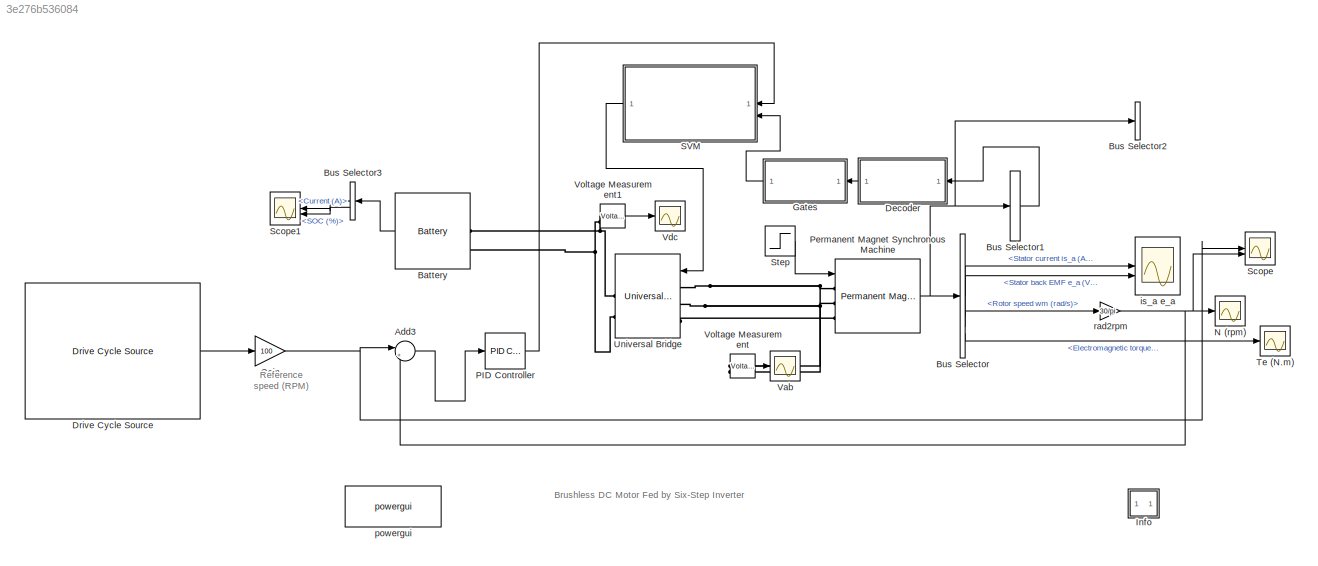
MODEL slx_3e276b536084
KIND model
CONFIG AbsTol = 1e-6
CONFIG EnableMultiTasking = on
CONFIG FixedStep = Ts
CONFIG MaxStep = 1e-6
CONFIG MinStep = auto
CONFIG PreLoadFcn = assignin('base','Ts',[5e-6])
CONFIG RelTol = 1e-6
CONFIG SampleTimeConstraint = Unconstrained
CONFIG SolverName = ode4
CONFIG StartTime = 0
CONFIG StopTime = 100
BLOCK [Sum] Add3
  Inputs = |+-
BLOCK [Reference] Battery  REF=spsBatteryLib/Battery
  LibrarySourceBlock = sps_lib/Sources/Battery
  SourceBlock = spsBatteryLib/Battery
  SourceType = Battery
BLOCK [BusSelector] Bus Selector
  OutputSignals = Stator current is_a (A),Stator back EMF e_a (V),Rotor speed wm (rad/s),Electromagnetic torque Te (N*m)
BLOCK [BusSelector] Bus Selector1
  OutputAsBus = on
  OutputSignals = Hall effect signal h_a,Hall effect signal h_b,Hall effect signal h_c
BLOCK [BusSelector] Bus Selector2
  OutputAsBus = on
  OutputSignals = Hall effect signal h_a,Hall effect signal h_b,Hall effect signal h_c
BLOCK [BusSelector] Bus Selector3
  NameLocation = top
  OutputSignals = Current (A),SOC (%)
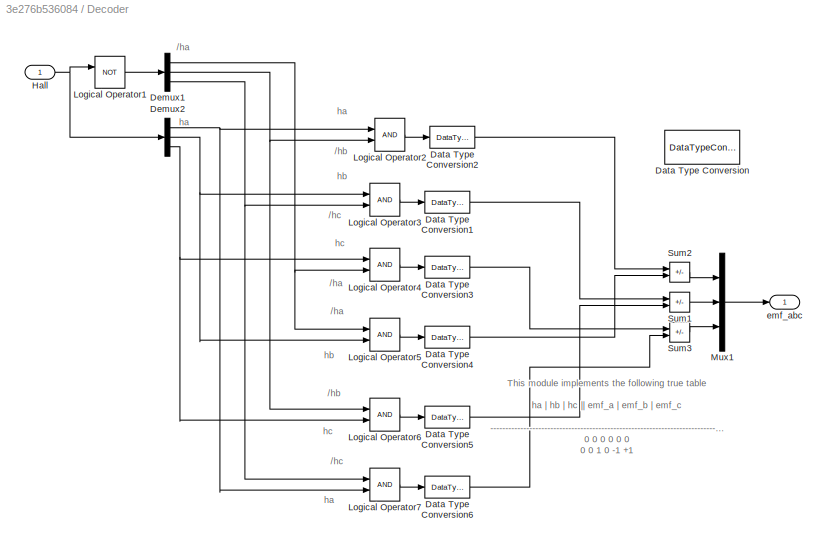
BLOCK [SubSystem] Decoder
  NameLocation = top
BLOCK [DataTypeConversion] Decoder/Data Type Conversion
  RndMeth = Floor
  SaturateOnIntegerOverflow = off
BLOCK [DataTypeConversion] Decoder/Data Type Conversion1
  RndMeth = Floor
  SaturateOnIntegerOverflow = off
BLOCK [DataTypeConversion] Decoder/Data Type Conversion2
  RndMeth = Floor
  SaturateOnIntegerOverflow = off
BLOCK [DataTypeConversion] Decoder/Data Type Conversion3
  RndMeth = Floor
  SaturateOnIntegerOverflow = off
BLOCK [DataTypeConversion] Decoder/Data Type Conversion4
  RndMeth = Floor
  SaturateOnIntegerOverflow = off
BLOCK [DataTypeConversion] Decoder/Data Type Conversion5
  RndMeth = Floor
  SaturateOnIntegerOverflow = off
BLOCK [DataTypeConversion] Decoder/Data Type Conversion6
  RndMeth = Floor
  SaturateOnIntegerOverflow = off
BLOCK [Demux] Decoder/Demux1
  Outputs = 3
BLOCK [Demux] Decoder/Demux2
  Outputs = 3
BLOCK [Inport] Decoder/Hall 
BLOCK [Logic] Decoder/Logical Operator1
  AllPortsSameDT = off
  Operator = NOT
  OutDataTypeStr = boolean
BLOCK [Logic] Decoder/Logical Operator2
  AllPortsSameDT = off
  OutDataTypeStr = boolean
BLOCK [Logic] Decoder/Logical Operator3
  AllPortsSameDT = off
  OutDataTypeStr = boolean
BLOCK [Logic] Decoder/Logical Operator4
  AllPortsSameDT = off
  OutDataTypeStr = boolean
BLOCK [Logic] Decoder/Logical Operator5
  AllPortsSameDT = off
  OutDataTypeStr = boolean
BLOCK [Logic] Decoder/Logical Operator6
  AllPortsSameDT = off
  OutDataTypeStr = boolean
BLOCK [Logic] Decoder/Logical Operator7
  AllPortsSameDT = off
  OutDataTypeStr = boolean
BLOCK [Mux] Decoder/Mux1
  DisplayOption = bar
  Inputs = 3
BLOCK [Sum] Decoder/Sum1
  IconShape = rectangular
  Inputs = +-
  OutDataTypeStr = double
BLOCK [Sum] Decoder/Sum2
  IconShape = rectangular
  Inputs = +-
  OutDataTypeStr = double
BLOCK [Sum] Decoder/Sum3
  IconShape = rectangular
  Inputs = +-
  OutDataTypeStr = double
BLOCK [Outport] Decoder/emf_abc
  VectorParamsAs1DForOutWhenUnconnected = off
BLOCK [Reference] Drive Cycle Source  REF=autolibshared/Drive Cycle Source
  AttributesFormatString = %<cycleVar> (%<tfinal>)
  LibrarySourceBlock = autolibscenario/Drive Cycle Source
  SourceBlock = autolibshared/Drive Cycle Source
  SourceType = Drive Cycle Source
BLOCK [Gain] Gain
  Gain = 100
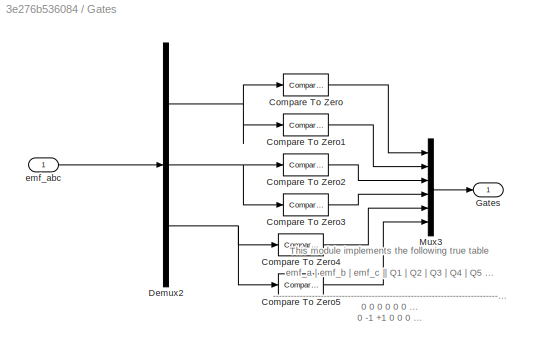
BLOCK [SubSystem] Gates
  NameLocation = top
BLOCK [Reference] Gates/Compare To Zero  REF=simulink/Logic and Bit
Operations/Compare
To Zero
  SourceBlock = simulink/Logic and Bit\nOperations/Compare\nTo Zero
  SourceType = Compare To Zero
BLOCK [Reference] Gates/Compare To Zero1  REF=simulink/Logic and Bit
Operations/Compare
To Zero
  SourceBlock = simulink/Logic and Bit\nOperations/Compare\nTo Zero
  SourceType = Compare To Zero
BLOCK [Reference] Gates/Compare To Zero2  REF=simulink/Logic and Bit
Operations/Compare
To Zero
  SourceBlock = simulink/Logic and Bit\nOperations/Compare\nTo Zero
  SourceType = Compare To Zero
BLOCK [Reference] Gates/Compare To Zero3  REF=simulink/Logic and Bit
Operations/Compare
To Zero
  SourceBlock = simulink/Logic and Bit\nOperations/Compare\nTo Zero
  SourceType = Compare To Zero
BLOCK [Reference] Gates/Compare To Zero4  REF=simulink/Logic and Bit
Operations/Compare
To Zero
  SourceBlock = simulink/Logic and Bit\nOperations/Compare\nTo Zero
  SourceType = Compare To Zero
BLOCK [Reference] Gates/Compare To Zero5  REF=simulink/Logic and Bit
Operations/Compare
To Zero
  SourceBlock = simulink/Logic and Bit\nOperations/Compare\nTo Zero
  SourceType = Compare To Zero
BLOCK [Demux] Gates/Demux2
  Outputs = 3
BLOCK [Outport] Gates/Gates
  VectorParamsAs1DForOutWhenUnconnected = off
BLOCK [Mux] Gates/Mux3
  DisplayOption = bar
  Inputs = 6
BLOCK [Inport] Gates/emf_abc 
BLOCK [SubSystem] Info
  OpenFcn = showdemo(bdroot(gcb))
BLOCK [Scope] N (rpm)
  Floating = off
  NameLocation = top
  NumInputPorts = 1
  ScopeSpecificationString = Simulink.scopes.TimeScopeBlockCfg('CurrentConfiguration', extmgr.ConfigurationSet(extmgr.Configuration('Core','General UI',true),extmgr.Configuration('Core','Source UI',true),extmgr.Configuration('Sources','WiredSimulink',true,'DataLogging',true,'DataLoggingVariableName','N','DataLoggingSaveFormat','StructureWithTime','DataLoggingDecimation','1','DataLoggingDecimateData',true),extmgr.Configuration...<+1700ch>
BLOCK [Reference] PID Controller  REF=slpidlib/PID Controller
  LibrarySourceBlock = simulink/Continuous/PID Controller
  SourceBlock = slpidlib/PID Controller
  SourceType = PID 1dof
BLOCK [Reference] Permanent Magnet Synchronous Machine  REF=spsPermanentMagnetSynchronousMachineLib/Permanent Magnet
Synchronous Machine
  SourceBlock = spsPermanentMagnetSynchronousMachineLib/Permanent Magnet\nSynchronous Machine
  SourceType = Permanent Magnet Synchronous Machine
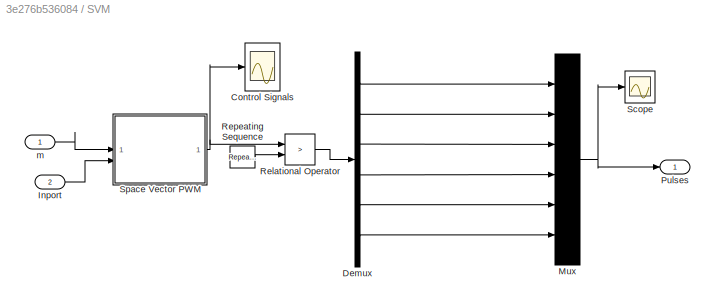
BLOCK [SubSystem] SVM
  NameLocation = top
BLOCK [Scope] SVM/Control Signals
  Floating = off
  NumInputPorts = 1
  ScopeSpecificationString = Simulink.scopes.TimeScopeBlockCfg('CurrentConfiguration', extmgr.ConfigurationSet(extmgr.Configuration('Core','General UI',true),extmgr.Configuration('Core','Source UI',true),extmgr.Configuration('Sources','WiredSimulink',true,'DataLoggingVariableName','ScopeData1','DataLoggingSaveFormat','StructureWithTime','DataLoggingMaxPoints','25000','DataLoggingDecimation','1','DataLoggingDecimateData',true)...<+1790ch>
BLOCK [Demux] SVM/Demux
  Outputs = 6
BLOCK [Inport] SVM/Inport
  Port = 2
BLOCK [Mux] SVM/Mux
  DisplayOption = bar
  Inputs = 6
BLOCK [Outport] SVM/Pulses
BLOCK [RelationalOperator] SVM/Relational Operator
  InputSameDT = off
  Operator = >
BLOCK [Reference] SVM/Repeating Sequence  REF=simulink/Sources/Repeating
Sequence
  SourceBlock = simulink/Sources/Repeating\nSequence
  SourceType = Repeating table
BLOCK [Scope] SVM/Scope
  Floating = off
  NumInputPorts = 1
  ScopeSpecificationString = Simulink.scopes.TimeScopeBlockCfg('CurrentConfiguration', extmgr.ConfigurationSet(extmgr.Configuration('Core','General UI',true),extmgr.Configuration('Core','Source UI',true),extmgr.Configuration('Sources','WiredSimulink',true,'DataLoggingVariableName','ScopeData2'),extmgr.Configuration('Visuals','Time Domain',true,'SerializedDisplays',{struct('MinYLimReal','0.99962','MaxYLimReal','1.00008','YLabe...<+1551ch>
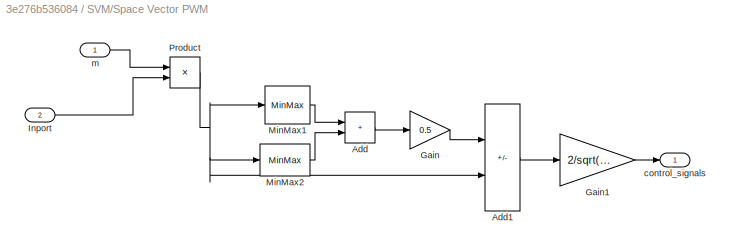
BLOCK [SubSystem] SVM/Space Vector PWM
BLOCK [Sum] SVM/Space Vector PWM/Add
  IconShape = rectangular
BLOCK [Sum] SVM/Space Vector PWM/Add1
  IconShape = rectangular
  Inputs = -+
BLOCK [Gain] SVM/Space Vector PWM/Gain
  Gain = 0.5
BLOCK [Gain] SVM/Space Vector PWM/Gain1
  Gain = 2/sqrt(3)
BLOCK [Inport] SVM/Space Vector PWM/Inport
  Port = 2
BLOCK [MinMax] SVM/Space Vector PWM/MinMax1
  InputSameDT = on
  SaturateOnIntegerOverflow = on
BLOCK [MinMax] SVM/Space Vector PWM/MinMax2
  Function = max
  InputSameDT = on
  SaturateOnIntegerOverflow = on
BLOCK [Product] SVM/Space Vector PWM/Product
  RndMeth = Zero
BLOCK [Outport] SVM/Space Vector PWM/control_signals
BLOCK [Inport] SVM/Space Vector PWM/m
BLOCK [Inport] SVM/m
BLOCK [Scope] Scope
  Floating = off
  NumInputPorts = 2
  ScopeSpecificationString = Simulink.scopes.TimeScopeBlockCfg('CurrentConfiguration', extmgr.ConfigurationSet(extmgr.Configuration('Core','General UI',true),extmgr.Configuration('Core','Source UI',true),extmgr.Configuration('Sources','WiredSimulink',true,'DataLoggingVariableName','ScopeData1'),extmgr.Configuration('Visuals','Time Domain',true,'SerializedDisplays',{struct('MinYLimReal','-100','MaxYLimReal','1000','YLabelReal'...<+1501ch>
BLOCK [Scope] Scope1
  Floating = off
  NameLocation = top
  NumInputPorts = 2
  ScopeSpecificationString = Simulink.scopes.TimeScopeBlockCfg('CurrentConfiguration', extmgr.ConfigurationSet(extmgr.Configuration('Core','General UI',true),extmgr.Configuration('Core','Source UI',true),extmgr.Configuration('Sources','WiredSimulink',true,'DataLoggingVariableName','ScopeData1'),extmgr.Configuration('Visuals','Time Domain',true,'SerializedDisplays',{struct('MinYLimReal','-10.00000','MaxYLimReal','100','YLabelR...<+1520ch>
BLOCK [Step] Step
  After = 3
  SampleTime = 0
  Time = .1
BLOCK [Scope] Te (N.m)
  Floating = off
  NumInputPorts = 1
  ScopeSpecificationString = C++SS(StrPVP('Location','[792, 500, 1247, 792]'),StrPVP('Open','off'),StrPVP('ZoomMode','yonly'),MxPVP('AxesTitles',54,'struct(''axes1'',''Electromagnetic Torque (Nm)'')'),MxPVP('ScopeGraphics',57,'struct(''FigureColor'',''[0.5 0.5 0.5]'',''AxesColor'',''[0 0 0]'',''AxesTickColor'',''[1 1 1]'',''LineColors'',''[1 1 0;1 0 1;0 1 1;1 0 0;0 1 0;0 0 1]'',''LineStyles'',''-|-|-|-|-|-'',''LineWidths'',''...<+382ch>
BLOCK [Reference] Universal Bridge  REF=spsUniversalBridgeLib/Universal Bridge
  SourceBlock = spsUniversalBridgeLib/Universal Bridge
  SourceType = Universal Bridge
BLOCK [Scope] Vab
  Floating = off
  NumInputPorts = 1
  ScopeSpecificationString = C++SS(StrPVP('Location','[6, 54, 1158, 835]'),StrPVP('Open','off'),StrPVP('ZoomMode','xonly'),MxPVP('AxesTitles',54,'struct(''axes1'',''Line-Line voltage Vab'')'),StrPVP('ShowLegends','off'),StrPVP('TimeRange','0.06'),StrPVP('YMin','-10000'),StrPVP('YMax','10000'),StrPVP('SaveName','ScopeData4'),StrPVP('DataFormat','Structure'),StrPVP('LimitDataPoints','off'),StrPVP('BlockParamSampleTime','0'),Str...<+60ch>
BLOCK [Scope] Vdc
  Floating = off
  NumInputPorts = 1
  ScopeSpecificationString = C++SS(StrPVP('Location','[439, 408, 863, 756]'),StrPVP('Open','off'),StrPVP('ZoomMode','xonly'),MxPVP('AxesTitles',54,'struct(''axes1'',''DC bus voltage'')'),MxPVP('ScopeGraphics',57,'struct(''FigureColor'',''[0.5 0.5 0.5]'',''AxesColor'',''[0 0 0]'',''AxesTickColor'',''[1 1 1]'',''LineColors'',''[1 1 0;1 0 1;0 1 1;1 0 0;0 1 0;0 0 1]'',''LineStyles'',''-|-|-|-|-|-'',''LineWidths'',''[0.5 0.5 0.5 0...<+357ch>
BLOCK [Reference] Voltage Measurement  REF=spsVoltageMeasurementLib/Voltage Measurement
  SourceBlock = spsVoltageMeasurementLib/Voltage Measurement
  SourceType = Voltage Measurement
BLOCK [Reference] Voltage Measurement1  REF=spsVoltageMeasurementLib/Voltage Measurement
  SourceBlock = spsVoltageMeasurementLib/Voltage Measurement
  SourceType = Voltage Measurement
BLOCK [Scope] is_a e_a
  Floating = off
  NameLocation = top
  NumInputPorts = 2
  ScopeSpecificationString = C++SS(StrPVP('Location','[223, 224, 931, 691]'),StrPVP('Open','off'),StrPVP('ZoomMode','yonly'),MxPVP('AxesTitles',54,'struct(''axes1'',''Stator current ia'',''axes2'',''Electromotive force ea'')'),MxPVP('ScopeGraphics',57,'struct(''FigureColor'',''[0.5 0.5 0.5]'',''AxesColor'',''[0 0 0]'',''AxesTickColor'',''[1 1 1]'',''LineColors'',''[1 1 0;1 0 1;0 1 1;1 0 0;0 1 0;0 0 1]'',''LineStyles'',''-|-|-...<+438ch>
BLOCK [Reference] powergui  REF=spspowerguiLib/powergui
  Priority = 2
  SourceBlock = spspowerguiLib/powergui
  SourceType = PSB option menu block
BLOCK [Gain] rad2rpm
  Gain = 30/pi
ANNOTATION (root): Brushless DC Motor Fed by Six-Step Inverter
ANNOTATION (root): Reference speed (RPM)
ANNOTATION Decoder: /ha
ANNOTATION Decoder: /hb
ANNOTATION Decoder: /hc
ANNOTATION Decoder: This module implements the following true table ha | hb | hc || emf_a | emf_b | emf_c -------------------------------------------------------------------------------- 0 0 0 0 0 0 0 0 1 0 -1 +1 0 1 0 -1 +1 0 0 1 1 -1 0 +1 1 0 0 +1 0 -1 1 0 1 +1 -1 0 1 1 0 0 +1 -1 1 1 1 0 0 0
ANNOTATION Decoder: ha
ANNOTATION Decoder: hb
ANNOTATION Decoder: hc
ANNOTATION Gates: This module implements the following true table emf_a | emf_b | emf_c || Q1 | Q2 | Q3 | Q4 | Q5 | Q6 ------------------------------------------------------------------------------------------------------------------ 0 0 0 0 0 0 0 0 0 0 -1 +1 0 0 0 1 1 0 -1 +1 0 0 1 1 0 0 0 -1 0 +1 0 1 0 0 1 0 +1 0 -1 1 0 0 0 0 1 +1 -1 0 1 0 0 1 0 0 0 +1 -1 0 0 1 0 0 1 0 0 0 0 0 0 0 0 0
LINE Add3:1 -> PID Controller:1
LINE Battery:1 -> Bus Selector3:1
LINE Bus Selector1:1 -> Decoder:1
LINE Bus Selector3:1 -> Scope1:1
LINE Bus Selector3:2 -> Scope1:2
LINE Bus Selector:1 -> is_a e_a:1
LINE Bus Selector:2 -> is_a e_a:2
LINE Bus Selector:3 -> rad2rpm:1
LINE Bus Selector:4 -> Te (N.m):1
LINE Decoder/Data Type Conversion1:1 -> Decoder/Sum1:1
LINE Decoder/Data Type Conversion2:1 -> Decoder/Sum2:1
LINE Decoder/Data Type Conversion3:1 -> Decoder/Sum3:1
LINE Decoder/Data Type Conversion4:1 -> Decoder/Sum2:2
LINE Decoder/Data Type Conversion5:1 -> Decoder/Sum1:2
LINE Decoder/Data Type Conversion6:1 -> Decoder/Sum3:2
NET Decoder/Demux1:1 -> Decoder/Logical Operator4:2, Decoder/Logical Operator5:1
NET Decoder/Demux1:2 -> Decoder/Logical Operator2:2, Decoder/Logical Operator6:1
NET Decoder/Demux1:3 -> Decoder/Logical Operator3:2, Decoder/Logical Operator7:1
NET Decoder/Demux2:1 -> Decoder/Logical Operator2:1, Decoder/Logical Operator7:2
NET Decoder/Demux2:2 -> Decoder/Logical Operator3:1, Decoder/Logical Operator5:2
NET Decoder/Demux2:3 -> Decoder/Logical Operator4:1, Decoder/Logical Operator6:2
NET Decoder/Hall :1 -> Decoder/Demux2:1, Decoder/Logical Operator1:1
LINE Decoder/Logical Operator1:1 -> Decoder/Demux1:1
LINE Decoder/Logical Operator2:1 -> Decoder/Data Type Conversion2:1
LINE Decoder/Logical Operator3:1 -> Decoder/Data Type Conversion1:1
LINE Decoder/Logical Operator4:1 -> Decoder/Data Type Conversion3:1
LINE Decoder/Logical Operator5:1 -> Decoder/Data Type Conversion4:1
LINE Decoder/Logical Operator6:1 -> Decoder/Data Type Conversion5:1
LINE Decoder/Logical Operator7:1 -> Decoder/Data Type Conversion6:1
LINE Decoder/Mux1:1 -> Decoder/emf_abc:1
LINE Decoder/Sum1:1 -> Decoder/Mux1:2
LINE Decoder/Sum2:1 -> Decoder/Mux1:1
LINE Decoder/Sum3:1 -> Decoder/Mux1:3
LINE Decoder:1 -> Gates:1
LINE Drive Cycle Source:1 -> Gain:1
NET Gain:1 -> Add3:1, Scope:1
LINE Gates/Compare To Zero1:1 -> Gates/Mux3:2
LINE Gates/Compare To Zero2:1 -> Gates/Mux3:3
LINE Gates/Compare To Zero3:1 -> Gates/Mux3:4
LINE Gates/Compare To Zero4:1 -> Gates/Mux3:5
LINE Gates/Compare To Zero5:1 -> Gates/Mux3:6
LINE Gates/Compare To Zero:1 -> Gates/Mux3:1
NET Gates/Demux2:1 -> Gates/Compare To Zero1:1, Gates/Compare To Zero:1
NET Gates/Demux2:2 -> Gates/Compare To Zero2:1, Gates/Compare To Zero3:1
NET Gates/Demux2:3 -> Gates/Compare To Zero4:1, Gates/Compare To Zero5:1
LINE Gates/Mux3:1 -> Gates/Gates:1
LINE Gates/emf_abc :1 -> Gates/Demux2:1
LINE Gates:1 -> SVM:2
LINE PID Controller:1 -> SVM:1
NET Permanent Magnet Synchronous Machine:1 -> Bus Selector1:1, Bus Selector2:1, Bus Selector:1
LINE SVM/Demux:1 -> SVM/Mux:1
LINE SVM/Demux:2 -> SVM/Mux:2
LINE SVM/Demux:3 -> SVM/Mux:3
LINE SVM/Demux:4 -> SVM/Mux:4
LINE SVM/Demux:5 -> SVM/Mux:5
LINE SVM/Demux:6 -> SVM/Mux:6
LINE SVM/Inport:1 -> SVM/Space Vector PWM:2
NET SVM/Mux:1 -> SVM/Pulses:1, SVM/Scope:1
LINE SVM/Relational Operator:1 -> SVM/Demux:1
LINE SVM/Repeating Sequence:1 -> SVM/Relational Operator:2
LINE SVM/Space Vector PWM/Add1:1 -> SVM/Space Vector PWM/Gain1:1
LINE SVM/Space Vector PWM/Add:1 -> SVM/Space Vector PWM/Gain:1
LINE SVM/Space Vector PWM/Gain1:1 -> SVM/Space Vector PWM/control_signals:1
LINE SVM/Space Vector PWM/Gain:1 -> SVM/Space Vector PWM/Add1:1
LINE SVM/Space Vector PWM/Inport:1 -> SVM/Space Vector PWM/Product:2
LINE SVM/Space Vector PWM/MinMax1:1 -> SVM/Space Vector PWM/Add:1
LINE SVM/Space Vector PWM/MinMax2:1 -> SVM/Space Vector PWM/Add:2
NET SVM/Space Vector PWM/Product:1 -> SVM/Space Vector PWM/Add1:2, SVM/Space Vector PWM/MinMax1:1, SVM/Space Vector PWM/MinMax2:1
LINE SVM/Space Vector PWM/m:1 -> SVM/Space Vector PWM/Product:1
NET SVM/Space Vector PWM:1 -> SVM/Control Signals:1, SVM/Relational Operator:1
LINE SVM/m:1 -> SVM/Space Vector PWM:1
LINE SVM:1 -> Universal Bridge:1
LINE Step:1 -> Permanent Magnet Synchronous Machine:1
LINE Voltage Measurement1:1 -> Vdc:1
LINE Voltage Measurement:1 -> Vab:1
NET rad2rpm:1 -> Add3:2, N (rpm):1, Scope:2
PNET net1: Battery:LConn1 -- Universal Bridge:RConn1 -- Voltage Measurement1:LConn1
PNET net2: Battery:LConn2 -- Universal Bridge:RConn2 -- Voltage Measurement1:LConn2
PNET net3: Permanent Magnet Synchronous Machine:LConn1 -- Universal Bridge:LConn1 -- Voltage Measurement:LConn1
PNET net4: Permanent Magnet Synchronous Machine:LConn2 -- Universal Bridge:LConn2 -- Voltage Measurement:LConn2
PLINE Permanent Magnet Synchronous Machine:LConn3 -- Universal Bridge:LConn3
note: NET lines group one-source signal fan-out (src -> all destinations, sorted); 1:1 wires keep LINE; PNET lines group multi-terminal physical nets as a canonical sorted terminal list (undirected conserving connections); 2-terminal nets keep the pairwise PLINE form
